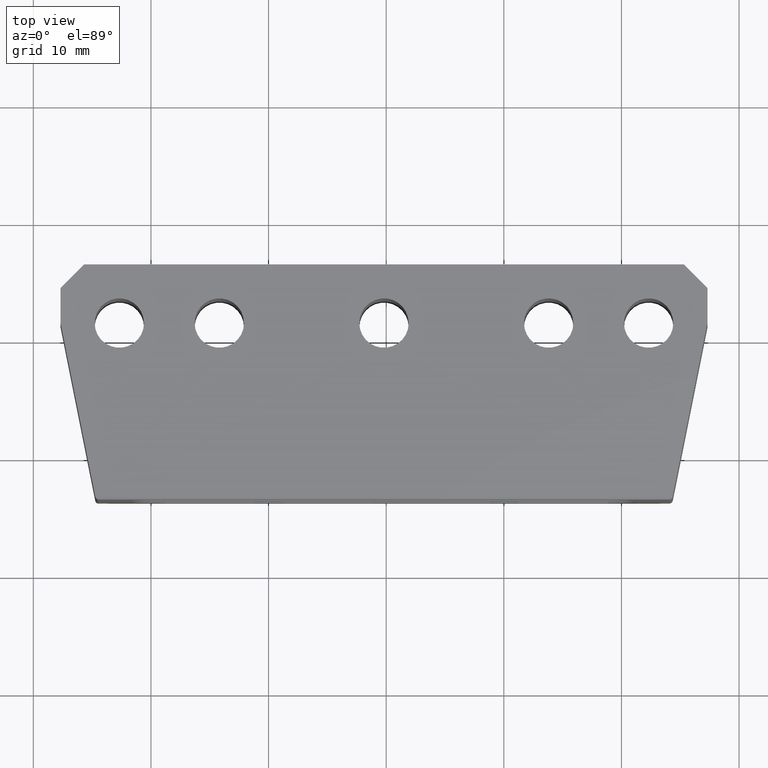
[diagram: clean part render]
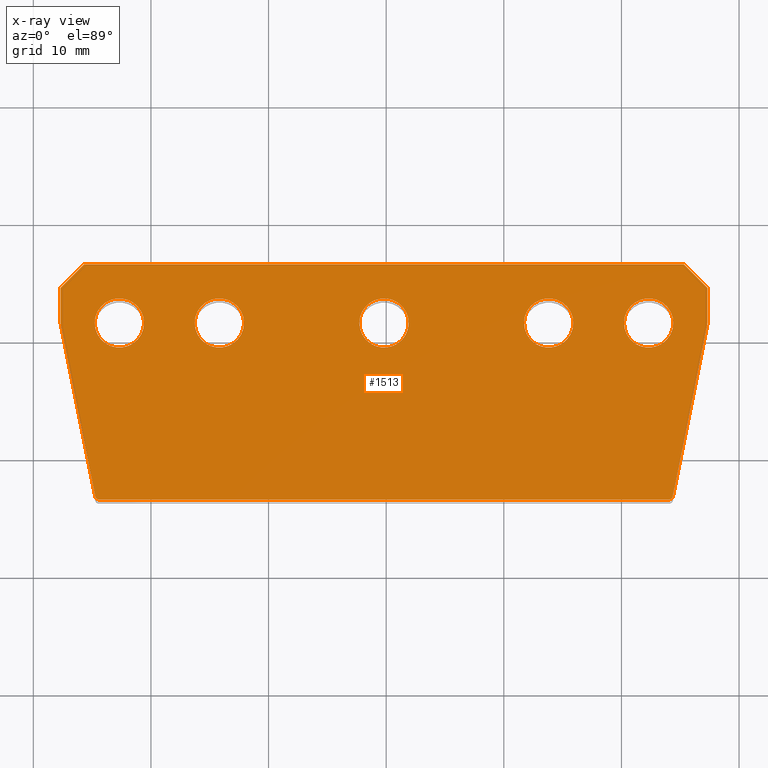
[diagram: x-ray — body ghosted, one internal face saturated and labeled with its STEP entity id]
A machine part, top view, then the same camera in x-ray: the body is ghosted and one INTERNAL B-rep face — a face not visible from any outside direction — is saturated and labeled: STEP entity #1513.
In plain terms, the highlighted planar face has unit normal (-0, 0, -1).
Its self-contained STEP definition (entity closure, byte-faithful):
#641 = VERTEX_POINT ( 'NONE', #3986 ) ;
#655 = VERTEX_POINT ( 'NONE', #4103 ) ;
#657 = VERTEX_POINT ( 'NONE', #4098 ) ;
#660 = EDGE_CURVE ( 'NONE', #657, #661, #4089, .T. ) ;
#661 = VERTEX_POINT ( 'NONE', #4084 ) ;
#664 = EDGE_CURVE ( 'NONE', #655, #665, #4082, .T. ) ;
#665 = VERTEX_POINT ( 'NONE', #4077 ) ;
#671 = VERTEX_POINT ( 'NONE', #4030 ) ;
#755 = EDGE_CURVE ( 'NONE', #641, #756, #4432, .T. ) ;
#756 = VERTEX_POINT ( 'NONE', #4423 ) ;
#842 = VERTEX_POINT ( 'NONE', #4670 ) ;
#844 = EDGE_CURVE ( 'NONE', #842, #671, #4587, .T. ) ;
#852 = EDGE_CURVE ( 'NONE', #856, #857, #4641, .T. ) ;
#856 = VERTEX_POINT ( 'NONE', #4633 ) ;
#857 = VERTEX_POINT ( 'NONE', #4632 ) ;
#908 = ORIENTED_EDGE ( 'NONE', *, *, #1331, .T. ) ;
#1078 = VERTEX_POINT ( 'NONE', #5351 ) ;
#1080 = EDGE_CURVE ( 'NONE', #1081, #1078, #5350, .T. ) ;
#1081 = VERTEX_POINT ( 'NONE', #5346 ) ;
#1105 = VERTEX_POINT ( 'NONE', #5179 ) ;
#1111 = VERTEX_POINT ( 'NONE', #5169 ) ;
#1115 = EDGE_CURVE ( 'NONE', #1105, #1111, #5323, .T. ) ;
#1118 = EDGE_CURVE ( 'NONE', #1119, #1120, #5210, .T. ) ;
#1119 = VERTEX_POINT ( 'NONE', #5206 ) ;
#1120 = VERTEX_POINT ( 'NONE', #5205 ) ;
#1218 = VERTEX_POINT ( 'NONE', #8122 ) ;
#1219 = VERTEX_POINT ( 'NONE', #8168 ) ;
#1243 = EDGE_CURVE ( 'NONE', #1218, #1219, #8181, .T. ) ;
#1298 = EDGE_LOOP ( 'NONE', ( #1299, #1301 ) ) ;
#1299 = ORIENTED_EDGE ( 'NONE', *, *, #1300, .F. ) ;
#1300 = EDGE_CURVE ( 'NONE', #756, #641, #5792, .T. ) ;
#1301 = ORIENTED_EDGE ( 'NONE', *, *, #755, .F. ) ;
#1302 = EDGE_LOOP ( 'NONE', ( #1303, #1306, #1523, #1524, #1527, #1529, #908, #1316, #1309, #1315 ) ) ;
#1303 = ORIENTED_EDGE ( 'NONE', *, *, #1304, .F. ) ;
#1304 = EDGE_CURVE ( 'NONE', #1305, #1078, #5787, .T. ) ;
#1305 = VERTEX_POINT ( 'NONE', #5783 ) ;
#1306 = ORIENTED_EDGE ( 'NONE', *, *, #1522, .T. ) ;
#1309 = ORIENTED_EDGE ( 'NONE', *, *, #1314, .T. ) ;
#1314 = EDGE_CURVE ( 'NONE', #1219, #1081, #5777, .T. ) ;
#1315 = ORIENTED_EDGE ( 'NONE', *, *, #1080, .T. ) ;
#1316 = ORIENTED_EDGE ( 'NONE', *, *, #1243, .T. ) ;
#1331 = EDGE_CURVE ( 'NONE', #1111, #1218, #6010, .T. ) ;
#1414 = EDGE_LOOP ( 'NONE', ( #1415, #1417 ) ) ;
#1415 = ORIENTED_EDGE ( 'NONE', *, *, #1416, .F. ) ;
#1416 = EDGE_CURVE ( 'NONE', #661, #657, #6221, .T. ) ;
#1417 = ORIENTED_EDGE ( 'NONE', *, *, #660, .F. ) ;
#1513 = ADVANCED_FACE ( 'NONE', ( #6295, #6294, #6293, #6292, #6291, #6290 ), #6386, .F. ) ;
#1514 = EDGE_LOOP ( 'NONE', ( #1515, #1517 ) ) ;
#1515 = ORIENTED_EDGE ( 'NONE', *, *, #1516, .F. ) ;
#1516 = EDGE_CURVE ( 'NONE', #857, #856, #6380, .T. ) ;
#1517 = ORIENTED_EDGE ( 'NONE', *, *, #852, .F. ) ;
#1522 = EDGE_CURVE ( 'NONE', #1305, #1119, #6367, .T. ) ;
#1523 = ORIENTED_EDGE ( 'NONE', *, *, #1118, .T. ) ;
#1524 = ORIENTED_EDGE ( 'NONE', *, *, #1525, .T. ) ;
#1525 = EDGE_CURVE ( 'NONE', #1120, #1526, #6362, .T. ) ;
#1526 = VERTEX_POINT ( 'NONE', #6357 ) ;
#1527 = ORIENTED_EDGE ( 'NONE', *, *, #1528, .F. ) ;
#1528 = EDGE_CURVE ( 'NONE', #1105, #1526, #6356, .T. ) ;
#1529 = ORIENTED_EDGE ( 'NONE', *, *, #1115, .T. ) ;
#1530 = EDGE_LOOP ( 'NONE', ( #1531, #1533 ) ) ;
#1531 = ORIENTED_EDGE ( 'NONE', *, *, #1532, .F. ) ;
#1532 = EDGE_CURVE ( 'NONE', #671, #842, #6352, .T. ) ;
#1533 = ORIENTED_EDGE ( 'NONE', *, *, #844, .F. ) ;
#1534 = EDGE_LOOP ( 'NONE', ( #1535, #1537 ) ) ;
#1535 = ORIENTED_EDGE ( 'NONE', *, *, #1536, .F. ) ;
#1536 = EDGE_CURVE ( 'NONE', #665, #655, #6347, .T. ) ;
#1537 = ORIENTED_EDGE ( 'NONE', *, *, #664, .F. ) ;
#3986 = CARTESIAN_POINT ( 'NONE',  ( -2.285185185185193200, 11.32716049382709200, 2.091903039680431700E-011 ) ) ;
#4030 = CARTESIAN_POINT ( 'NONE',  ( 15.91481481481482000, 11.32716049382709200, 2.091903039680431700E-011 ) ) ;
#4077 = CARTESIAN_POINT ( 'NONE',  ( 24.41481481481481500, 11.32716049382710500, 2.091903039680431700E-011 ) ) ;
#4078 = DIRECTION ( 'NONE',  ( 1.000000000000000000, 0.0000000000000000000, 0.0000000000000000000 ) ) ;
#4079 = DIRECTION ( 'NONE',  ( -1.848892746611746400E-032, -5.296998494942644200E-033, 1.000000000000000000 ) ) ;
#4080 = CARTESIAN_POINT ( 'NONE',  ( 22.31481481481481700, 11.32716049382710500, 2.091903039680431700E-011 ) ) ;
#4081 = AXIS2_PLACEMENT_3D ( 'NONE', #4080, #4079, #4078 ) ;
#4082 = CIRCLE ( 'NONE', #4081, 2.100000000000001000 ) ;
#4084 = CARTESIAN_POINT ( 'NONE',  ( -12.08518518518517800, 11.32716049382710500, 2.091903039680431700E-011 ) ) ;
#4085 = DIRECTION ( 'NONE',  ( 1.000000000000000000, 0.0000000000000000000, 0.0000000000000000000 ) ) ;
#4086 = DIRECTION ( 'NONE',  ( -1.848892746611746400E-032, -5.296998494942644200E-033, 1.000000000000000000 ) ) ;
#4087 = CARTESIAN_POINT ( 'NONE',  ( -14.18518518518517800, 11.32716049382710500, 2.091903039680431700E-011 ) ) ;
#4088 = AXIS2_PLACEMENT_3D ( 'NONE', #4087, #4086, #4085 ) ;
#4089 = CIRCLE ( 'NONE', #4088, 2.099999999999999600 ) ;
#4098 = CARTESIAN_POINT ( 'NONE',  ( -16.28518518518517800, 11.32716049382710500, 2.091903039680431700E-011 ) ) ;
#4103 = CARTESIAN_POINT ( 'NONE',  ( 20.21481481481481500, 11.32716049382710500, 2.091903039680431700E-011 ) ) ;
#4423 = CARTESIAN_POINT ( 'NONE',  ( 1.914814814814807600, 11.32716049382709200, 2.091903039680431700E-011 ) ) ;
#4424 = DIRECTION ( 'NONE',  ( 1.000000000000000000, 0.0000000000000000000, 0.0000000000000000000 ) ) ;
#4425 = DIRECTION ( 'NONE',  ( -1.848892746611746400E-032, -5.296998494942644200E-033, 1.000000000000000000 ) ) ;
#4426 = CARTESIAN_POINT ( 'NONE',  ( -0.1851851851851927200, 11.32716049382709200, 2.091903039680431700E-011 ) ) ;
#4427 = AXIS2_PLACEMENT_3D ( 'NONE', #4426, #4425, #4424 ) ;
#4432 = CIRCLE ( 'NONE', #4427, 2.100000000000000100 ) ;
#4557 = CARTESIAN_POINT ( 'NONE',  ( -22.68518518518517600, 11.32716049382709200, 2.091903039680431700E-011 ) ) ;
#4583 = DIRECTION ( 'NONE',  ( 1.000000000000000000, 0.0000000000000000000, 0.0000000000000000000 ) ) ;
#4584 = DIRECTION ( 'NONE',  ( -1.848892746611746400E-032, -5.296998494942644200E-033, 1.000000000000000000 ) ) ;
#4585 = CARTESIAN_POINT ( 'NONE',  ( 13.81481481481482000, 11.32716049382709200, 2.091903039680431700E-011 ) ) ;
#4586 = AXIS2_PLACEMENT_3D ( 'NONE', #4585, #4584, #4583 ) ;
#4587 = CIRCLE ( 'NONE', #4586, 2.099999999999999600 ) ;
#4632 = CARTESIAN_POINT ( 'NONE',  ( -20.58518518518517500, 11.32716049382709200, 2.091903039680431700E-011 ) ) ;
#4633 = CARTESIAN_POINT ( 'NONE',  ( -24.78518518518517800, 11.32716049382709200, 2.091903039680431700E-011 ) ) ;
#4638 = DIRECTION ( 'NONE',  ( 1.000000000000000000, 0.0000000000000000000, 0.0000000000000000000 ) ) ;
#4639 = DIRECTION ( 'NONE',  ( -1.848892746611746400E-032, -5.296998494942644200E-033, 1.000000000000000000 ) ) ;
#4640 = AXIS2_PLACEMENT_3D ( 'NONE', #4557, #4639, #4638 ) ;
#4641 = CIRCLE ( 'NONE', #4640, 2.100000000000001000 ) ;
#4670 = CARTESIAN_POINT ( 'NONE',  ( 11.71481481481482100, 11.32716049382709200, 2.091903039680431700E-011 ) ) ;
#5169 = CARTESIAN_POINT ( 'NONE',  ( 27.31481481481482000, 14.32716049382710100, 2.091903039680431700E-011 ) ) ;
#5179 = CARTESIAN_POINT ( 'NONE',  ( 27.31481481481482000, 11.32716049382710500, 2.091903039680431700E-011 ) ) ;
#5205 = CARTESIAN_POINT ( 'NONE',  ( 24.06887364399926100, -3.672839506172908200, 2.091903039680431700E-011 ) ) ;
#5206 = CARTESIAN_POINT ( 'NONE',  ( -24.43924401436962400, -3.672839506172914900, 2.091903039680431700E-011 ) ) ;
#5207 = DIRECTION ( 'NONE',  ( 1.000000000000000000, 1.261617073437676800E-016, -1.848892746611746400E-032 ) ) ;
#5208 = VECTOR ( 'NONE', #5207, 1000.000000000000000 ) ;
#5209 = CARTESIAN_POINT ( 'NONE',  ( -27.68518518518518000, -3.672839506172922000, 2.091903039680431700E-011 ) ) ;
#5210 = LINE ( 'NONE', #5209, #5208 ) ;
#5320 = DIRECTION ( 'NONE',  ( -9.860761315262647600E-032, 1.000000000000000000, -5.296998494942644200E-033 ) ) ;
#5321 = VECTOR ( 'NONE', #5320, 1000.000000000000000 ) ;
#5322 = CARTESIAN_POINT ( 'NONE',  ( 27.31481481481482000, 16.32716049382710500, 2.091903039680431700E-011 ) ) ;
#5323 = LINE ( 'NONE', #5322, #5321 ) ;
#5346 = CARTESIAN_POINT ( 'NONE',  ( -27.68518518518517300, 14.32716049382708700, 2.091903039680431700E-011 ) ) ;
#5347 = DIRECTION ( 'NONE',  ( -1.734723475976805900E-016, -1.000000000000000000, 5.296998494942647600E-033 ) ) ;
#5348 = VECTOR ( 'NONE', #5347, 1000.000000000000000 ) ;
#5349 = CARTESIAN_POINT ( 'NONE',  ( -27.68518518518517300, 16.32716049382709800, 2.091903039680431700E-011 ) ) ;
#5350 = LINE ( 'NONE', #5349, #5348 ) ;
#5351 = CARTESIAN_POINT ( 'NONE',  ( -27.68518518518517300, 11.32716049382708500, 2.091903039680431700E-011 ) ) ;
#5774 = DIRECTION ( 'NONE',  ( -0.7071067811865465700, -0.7071067811865485700, 1.540743955509788700E-032 ) ) ;
#5775 = VECTOR ( 'NONE', #5774, 1000.000000000000000 ) ;
#5776 = CARTESIAN_POINT ( 'NONE',  ( -25.68518518518517300, 16.32716049382709800, 2.091903039680431700E-011 ) ) ;
#5777 = LINE ( 'NONE', #5776, #5775 ) ;
#5783 = CARTESIAN_POINT ( 'NONE',  ( -24.73341821707689900, -3.431674346714369800, 2.091903039680431700E-011 ) ) ;
#5784 = DIRECTION ( 'NONE',  ( -0.1961161351381838200, 0.9805806756909202200, -1.540743955509789000E-033 ) ) ;
#5785 = VECTOR ( 'NONE', #5784, 1000.000000000000100 ) ;
#5786 = CARTESIAN_POINT ( 'NONE',  ( -27.68518518518517300, 11.32716049382708500, 2.091903039680431700E-011 ) ) ;
#5787 = LINE ( 'NONE', #5786, #5785 ) ;
#5788 = DIRECTION ( 'NONE',  ( 1.000000000000000000, 0.0000000000000000000, 0.0000000000000000000 ) ) ;
#5789 = DIRECTION ( 'NONE',  ( -1.848892746611746400E-032, -5.296998494942644200E-033, 1.000000000000000000 ) ) ;
#5790 = CARTESIAN_POINT ( 'NONE',  ( -0.1851851851851927200, 11.32716049382709200, 2.091903039680431700E-011 ) ) ;
#5791 = AXIS2_PLACEMENT_3D ( 'NONE', #5790, #5789, #5788 ) ;
#5792 = CIRCLE ( 'NONE', #5791, 2.100000000000000100 ) ;
#6007 = DIRECTION ( 'NONE',  ( -0.7071067811865487900, 0.7071067811865463500, 9.244463733058733500E-033 ) ) ;
#6008 = VECTOR ( 'NONE', #6007, 999.9999999999998900 ) ;
#6009 = CARTESIAN_POINT ( 'NONE',  ( 27.31481481481482000, 14.32716049382710100, 2.091903039680431700E-011 ) ) ;
#6010 = LINE ( 'NONE', #6009, #6008 ) ;
#6218 = DIRECTION ( 'NONE',  ( 1.000000000000000000, 0.0000000000000000000, 0.0000000000000000000 ) ) ;
#6219 = DIRECTION ( 'NONE',  ( -1.848892746611746400E-032, -5.296998494942644200E-033, 1.000000000000000000 ) ) ;
#6220 = AXIS2_PLACEMENT_3D ( 'NONE', #6234, #6219, #6218 ) ;
#6221 = CIRCLE ( 'NONE', #6220, 2.099999999999999600 ) ;
#6234 = CARTESIAN_POINT ( 'NONE',  ( -14.18518518518517800, 11.32716049382710500, 2.091903039680431700E-011 ) ) ;
#6290 = FACE_OUTER_BOUND ( 'NONE', #1302, .T. ) ;
#6291 = FACE_BOUND ( 'NONE', #1298, .T. ) ;
#6292 = FACE_BOUND ( 'NONE', #1530, .T. ) ;
#6293 = FACE_BOUND ( 'NONE', #1534, .T. ) ;
#6294 = FACE_BOUND ( 'NONE', #1414, .T. ) ;
#6295 = FACE_BOUND ( 'NONE', #1514, .T. ) ;
#6343 = DIRECTION ( 'NONE',  ( 1.000000000000000000, 0.0000000000000000000, 0.0000000000000000000 ) ) ;
#6344 = DIRECTION ( 'NONE',  ( -1.848892746611746400E-032, -5.296998494942644200E-033, 1.000000000000000000 ) ) ;
#6345 = CARTESIAN_POINT ( 'NONE',  ( 22.31481481481481700, 11.32716049382710500, 2.091903039680431700E-011 ) ) ;
#6346 = AXIS2_PLACEMENT_3D ( 'NONE', #6345, #6344, #6343 ) ;
#6347 = CIRCLE ( 'NONE', #6346, 2.100000000000001000 ) ;
#6348 = DIRECTION ( 'NONE',  ( 1.000000000000000000, 0.0000000000000000000, 0.0000000000000000000 ) ) ;
#6349 = DIRECTION ( 'NONE',  ( -1.848892746611746400E-032, -5.296998494942644200E-033, 1.000000000000000000 ) ) ;
#6350 = CARTESIAN_POINT ( 'NONE',  ( 13.81481481481482000, 11.32716049382709200, 2.091903039680431700E-011 ) ) ;
#6351 = AXIS2_PLACEMENT_3D ( 'NONE', #6350, #6349, #6348 ) ;
#6352 = CIRCLE ( 'NONE', #6351, 2.099999999999999600 ) ;
#6353 = DIRECTION ( 'NONE',  ( -0.1961161351381839300, -0.9805806756909202200, 8.474091755303837800E-033 ) ) ;
#6354 = VECTOR ( 'NONE', #6353, 1000.000000000000100 ) ;
#6355 = CARTESIAN_POINT ( 'NONE',  ( 24.31481481481481700, -3.672839506172908200, 2.091903039680431700E-011 ) ) ;
#6356 = LINE ( 'NONE', #6355, #6354 ) ;
#6357 = CARTESIAN_POINT ( 'NONE',  ( 24.36304784670653600, -3.431674346714363100, 2.091903039680431700E-011 ) ) ;
#6358 = DIRECTION ( 'NONE',  ( -1.000000000000000000, -2.891205793294662500E-015, 0.0000000000000000000 ) ) ;
#6359 = DIRECTION ( 'NONE',  ( -1.848892746611746400E-032, -5.296998494942644200E-033, 1.000000000000000000 ) ) ;
#6360 = CARTESIAN_POINT ( 'NONE',  ( 24.06887364399926100, -3.372839506172899500, 2.091903039680431700E-011 ) ) ;
#6361 = AXIS2_PLACEMENT_3D ( 'NONE', #6360, #6359, #6358 ) ;
#6362 = CIRCLE ( 'NONE', #6361, 0.3000000000000016500 ) ;
#6363 = DIRECTION ( 'NONE',  ( -1.000000000000000000, -1.445602896647331200E-015, 0.0000000000000000000 ) ) ;
#6364 = DIRECTION ( 'NONE',  ( -1.848892746611746400E-032, -5.296998494942644200E-033, 1.000000000000000000 ) ) ;
#6365 = CARTESIAN_POINT ( 'NONE',  ( -24.43924401436962400, -3.372839506172906600, 2.091903039680431700E-011 ) ) ;
#6366 = AXIS2_PLACEMENT_3D ( 'NONE', #6365, #6364, #6363 ) ;
#6367 = CIRCLE ( 'NONE', #6366, 0.3000000000000016500 ) ;
#6377 = DIRECTION ( 'NONE',  ( 1.000000000000000000, 0.0000000000000000000, 0.0000000000000000000 ) ) ;
#6378 = DIRECTION ( 'NONE',  ( -1.848892746611746400E-032, -5.296998494942644200E-033, 1.000000000000000000 ) ) ;
#6379 = AXIS2_PLACEMENT_3D ( 'NONE', #6385, #6378, #6377 ) ;
#6380 = CIRCLE ( 'NONE', #6379, 2.100000000000001000 ) ;
#6381 = DIRECTION ( 'NONE',  ( -1.000000000000000000, 9.860761315262647600E-032, 1.848892746611746400E-032 ) ) ;
#6382 = DIRECTION ( 'NONE',  ( -1.848892746611746400E-032, 5.296998494942644200E-033, -1.000000000000000000 ) ) ;
#6383 = CARTESIAN_POINT ( 'NONE',  ( 27.31481481481482000, 16.32716049382710500, 2.091903039680431700E-011 ) ) ;
#6384 = AXIS2_PLACEMENT_3D ( 'NONE', #6383, #6382, #6381 ) ;
#6385 = CARTESIAN_POINT ( 'NONE',  ( -22.68518518518517600, 11.32716049382709200, 2.091903039680431700E-011 ) ) ;
#6386 = PLANE ( 'NONE',  #6384 ) ;
#8122 = CARTESIAN_POINT ( 'NONE',  ( 25.31481481481481700, 16.32716049382710500, 2.091903039680431700E-011 ) ) ;
#8168 = CARTESIAN_POINT ( 'NONE',  ( -25.68518518518517300, 16.32716049382709800, 2.091903039680431700E-011 ) ) ;
#8178 = DIRECTION ( 'NONE',  ( -1.000000000000000000, 9.860761315262647600E-032, 1.848892746611746400E-032 ) ) ;
#8179 = VECTOR ( 'NONE', #8178, 1000.000000000000000 ) ;
#8180 = CARTESIAN_POINT ( 'NONE',  ( -27.68518518518517300, 16.32716049382709800, 2.091903039680431700E-011 ) ) ;
#8181 = LINE ( 'NONE', #8180, #8179 ) ;